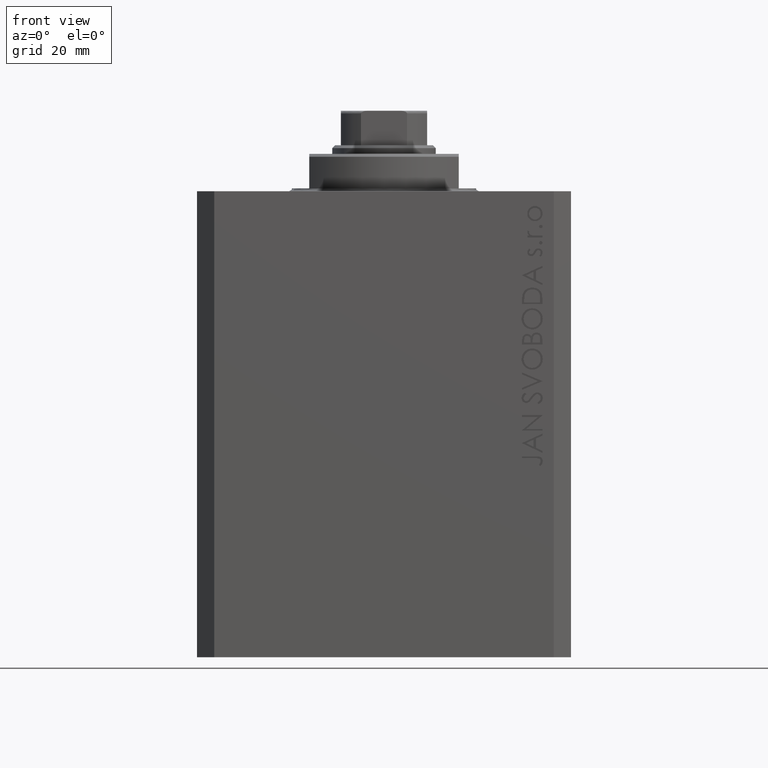
[diagram: clean part render]
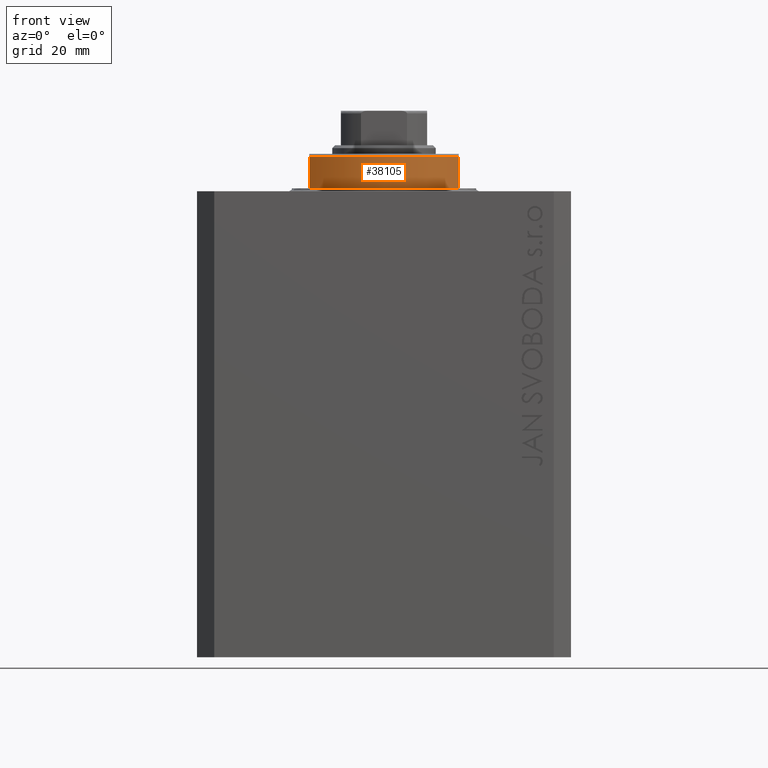
[diagram: same view with one face highlighted and labeled with its STEP entity id]
A machine part, front view. The second image highlights one B-rep face of the part: STEP entity #38105.
In plain terms, the highlighted cylindrical surface (partial cylindrical patch) has radius 16 mm, axis along (0, 0, -1).
Its self-contained STEP definition (entity closure, byte-faithful):
#1360 = DIRECTION ( 'NONE',  ( 0.000000000000000000, 0.000000000000000000, 1.000000000000000000 ) ) ;
#1805 = FACE_OUTER_BOUND ( 'NONE', #19075, .T. ) ;
#3002 = DIRECTION ( 'NONE',  ( 1.000000000000000000, 0.000000000000000000, 0.000000000000000000 ) ) ;
#4713 = CARTESIAN_POINT ( 'NONE',  ( 0.000000000000000000, 0.000000000000000000, -6.000000000000023981 ) ) ;
#6405 = ORIENTED_EDGE ( 'NONE', *, *, #39114, .T. ) ;
#8955 = CARTESIAN_POINT ( 'NONE',  ( 0.000000000000000000, 0.000000000000000000, -6.500000000000000000 ) ) ;
#12316 = CYLINDRICAL_SURFACE ( 'NONE', #14493, 16.00000000000000000 ) ;
#12479 = DIRECTION ( 'NONE',  ( 0.000000000000000000, 0.000000000000000000, -1.000000000000000000 ) ) ;
#12608 = CARTESIAN_POINT ( 'NONE',  ( 13.00000000000000000, -9.327379053088815652, -6.000000000000023981 ) ) ;
#14493 = AXIS2_PLACEMENT_3D ( 'NONE', #8955, #16371, #45467 ) ;
#14917 = DIRECTION ( 'NONE',  ( 0.000000000000000000, 0.000000000000000000, -1.000000000000000000 ) ) ;
#15596 = AXIS2_PLACEMENT_3D ( 'NONE', #4713, #1360, #19270 ) ;
#16371 = DIRECTION ( 'NONE',  ( -0.000000000000000000, -0.000000000000000000, 1.000000000000000000 ) ) ;
#16687 = ORIENTED_EDGE ( 'NONE', *, *, #44268, .T. ) ;
#16689 = CARTESIAN_POINT ( 'NONE',  ( -13.00000000000000000, -9.327379053088815652, -0.4999999999999995559 ) ) ;
#18491 = VERTEX_POINT ( 'NONE', #26213 ) ;
#18896 = ORIENTED_EDGE ( 'NONE', *, *, #34302, .F. ) ;
#18958 = LINE ( 'NONE', #25643, #38914 ) ;
#19075 = EDGE_LOOP ( 'NONE', ( #18896, #16687, #6405, #32680 ) ) ;
#19270 = DIRECTION ( 'NONE',  ( -1.000000000000000000, 0.000000000000000000, 0.000000000000000000 ) ) ;
#19457 = VERTEX_POINT ( 'NONE', #16689 ) ;
#21146 = CARTESIAN_POINT ( 'NONE',  ( 0.000000000000000000, 0.000000000000000000, -0.4999999999999995559 ) ) ;
#22423 = CIRCLE ( 'NONE', #15596, 16.00000000000000000 ) ;
#23541 = VERTEX_POINT ( 'NONE', #28610 ) ;
#24583 = CIRCLE ( 'NONE', #33721, 16.00000000000000000 ) ;
#25643 = CARTESIAN_POINT ( 'NONE',  ( -13.00000000000000000, -9.327379053088813876, -6.500000000000000000 ) ) ;
#26213 = CARTESIAN_POINT ( 'NONE',  ( 13.00000000000000000, -9.327379053088815652, -0.4999999999999995559 ) ) ;
#28610 = CARTESIAN_POINT ( 'NONE',  ( -13.00000000000000000, -9.327379053088815652, -6.000000000000023981 ) ) ;
#31253 = VECTOR ( 'NONE', #12479, 1000.000000000000000 ) ;
#32680 = ORIENTED_EDGE ( 'NONE', *, *, #46417, .T. ) ;
#33721 = AXIS2_PLACEMENT_3D ( 'NONE', #21146, #34977, #3002 ) ;
#34302 = EDGE_CURVE ( 'NONE', #18491, #42969, #45158, .T. ) ;
#34977 = DIRECTION ( 'NONE',  ( -0.000000000000000000, -0.000000000000000000, -1.000000000000000000 ) ) ;
#38105 = ADVANCED_FACE ( 'NONE', ( #1805 ), #12316, .T. ) ;
#38914 = VECTOR ( 'NONE', #14917, 1000.000000000000000 ) ;
#39114 = EDGE_CURVE ( 'NONE', #19457, #23541, #18958, .T. ) ;
#42969 = VERTEX_POINT ( 'NONE', #12608 ) ;
#44268 = EDGE_CURVE ( 'NONE', #18491, #19457, #24583, .T. ) ;
#45158 = LINE ( 'NONE', #45628, #31253 ) ;
#45467 = DIRECTION ( 'NONE',  ( 1.000000000000000000, 0.000000000000000000, 0.000000000000000000 ) ) ;
#45628 = CARTESIAN_POINT ( 'NONE',  ( 13.00000000000000000, -9.327379053088813876, -6.500000000000000000 ) ) ;
#46417 = EDGE_CURVE ( 'NONE', #23541, #42969, #22423, .T. ) ;